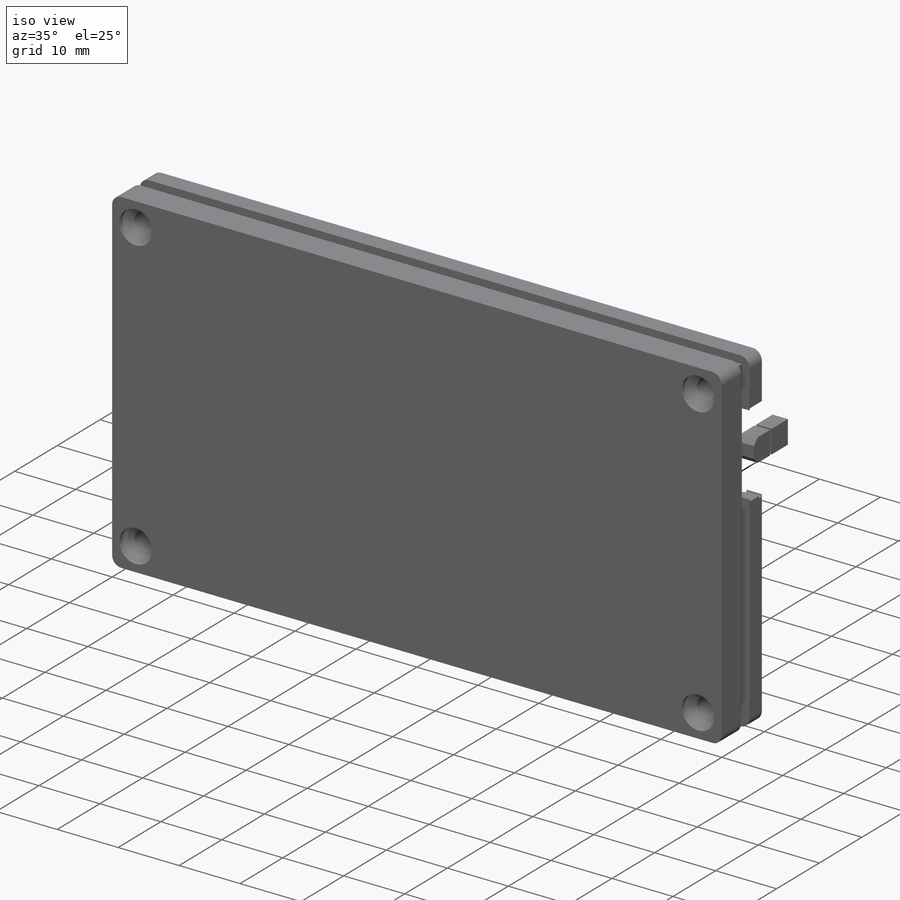
[diagram: iso view]
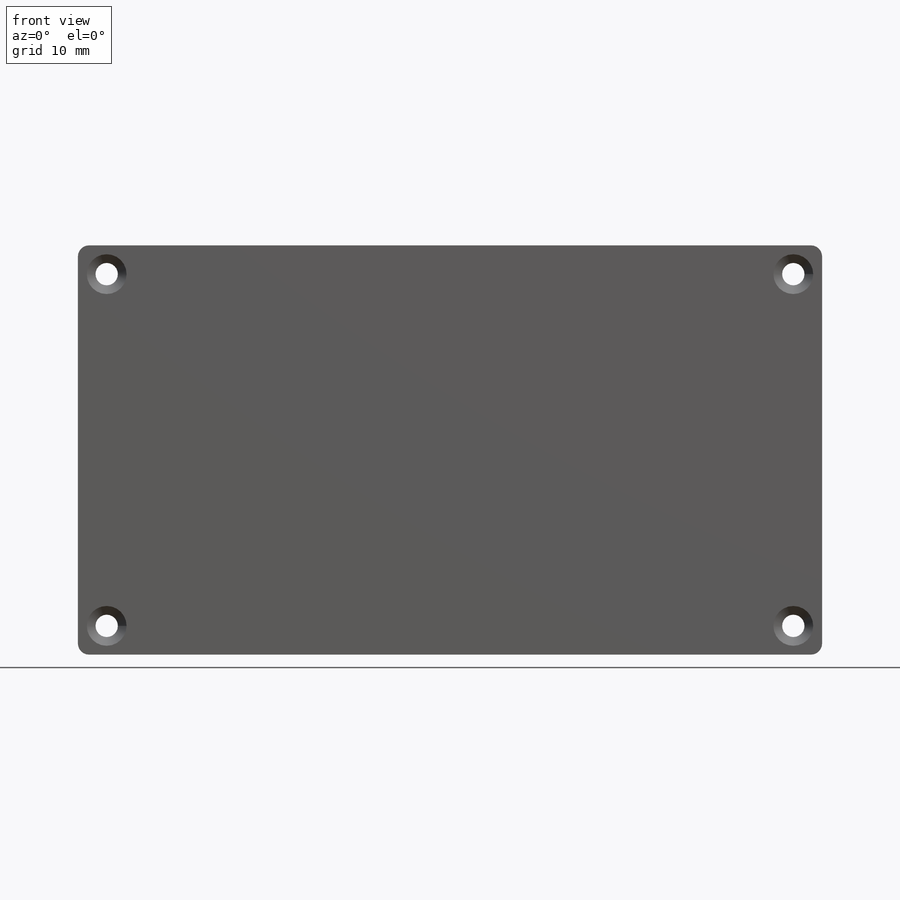
[diagram: front view]
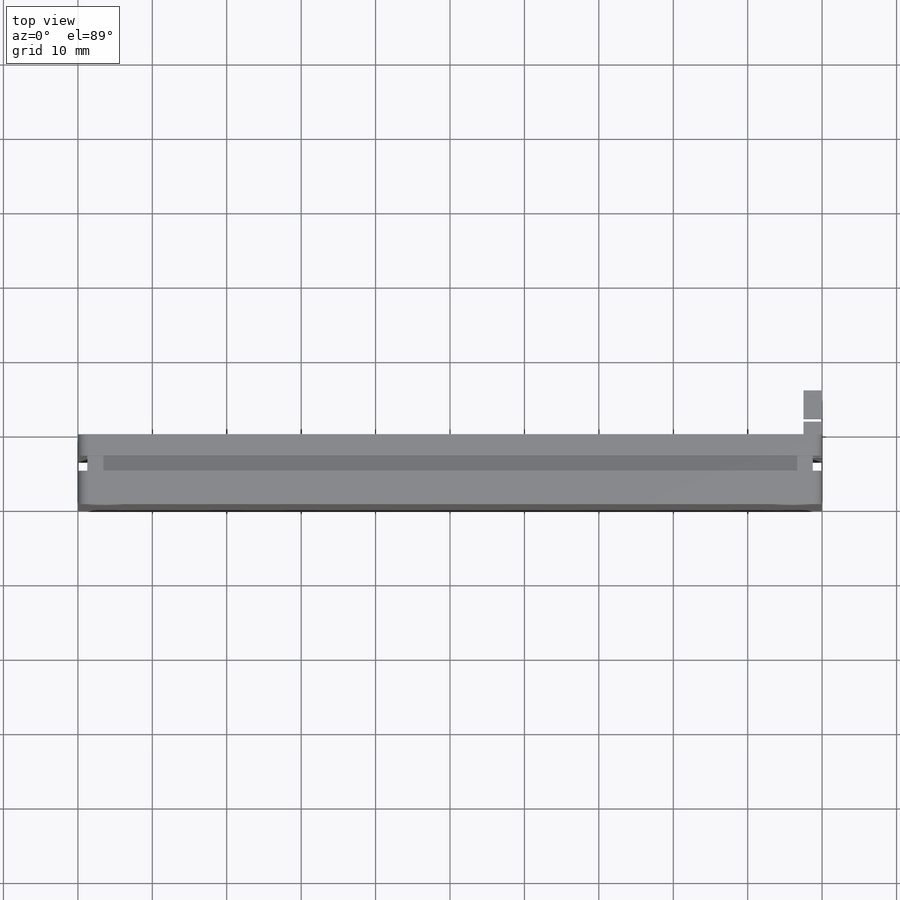
[diagram: top view]
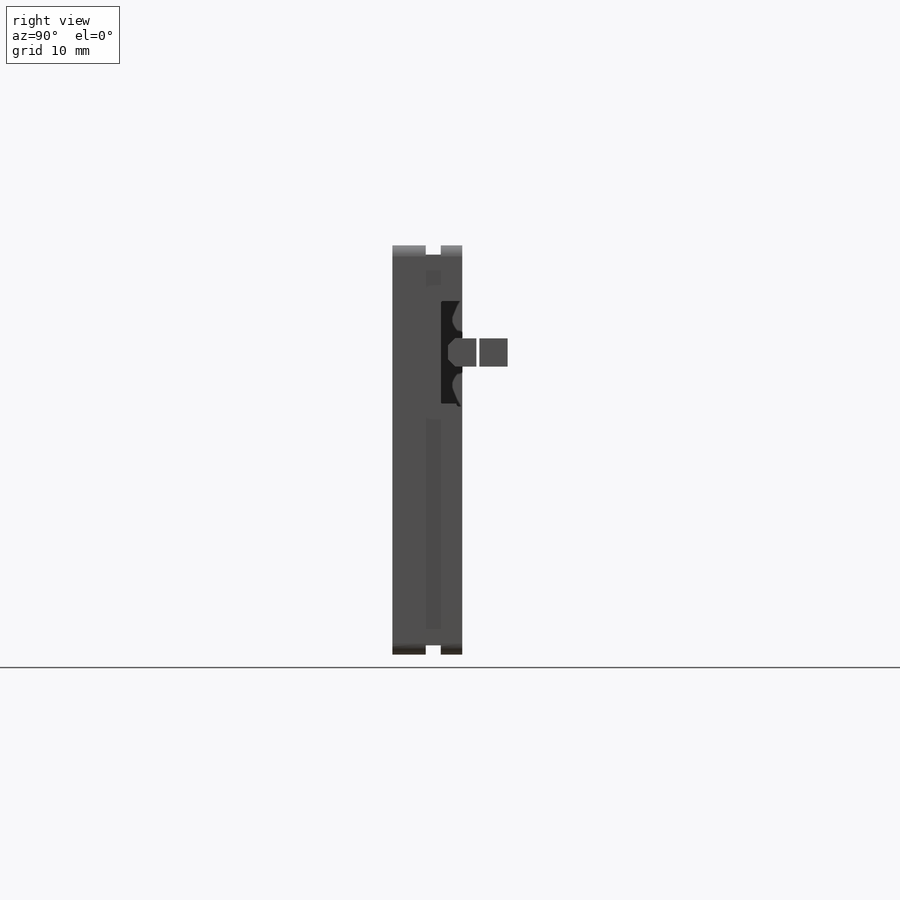
[diagram: right view]
SOLIDWORKS PART (.sldprt)
format: sldprt  version: not decoded by parser v0  size: 606,720 bytes
history: native  units: mm
features: fillet x6, extrude x3, sketch x2, material x1, cut_extrude x1 (+13 scaffold rows collapsed)
feature tree (26):
  scaffold x13  (default folders/planes/origin — collapsed)
  material  "Material <not specified>"
  sketch  "Sketch1"  dims[D1=55.0mm D2=100.0mm]
  extrude  "Boss-Extrude1"  Depth=10mm
  sketch  "Sketch2"  dims[D3=10.0mm D1=95.0mm D2=50.0mm]
  cut_extrude  "Cut-Extrude1"  Depth=8mm
  fillet  "Fillet2"  Radius=1.5mm
  extrude  "Cavity3"  [1 undecoded]
  fillet  "874380543<1>@CaseAssembly1"  [1 undecoded]
  extrude  "Cavity4"  [1 undecoded]
  fillet  "socket countersunk head screw_am<8>@CaseAssembly1"  [1 undecoded]
  fillet  "socket countersunk head screw_am<7>@CaseAssembly1"  [1 undecoded]
  fillet  "socket countersunk head screw_am<6>@CaseAssembly1"  [1 undecoded]
  fillet  "socket countersunk head screw_am<5>@CaseAssembly1"  [1 undecoded]
decode coverage: 5 of 12 modeling features carry decoded parameters
note: 7 parameter values undecoded
summary: no parameter record found for 7 features
note: suppression state not decoded; provenance and decode notes live in map.json
